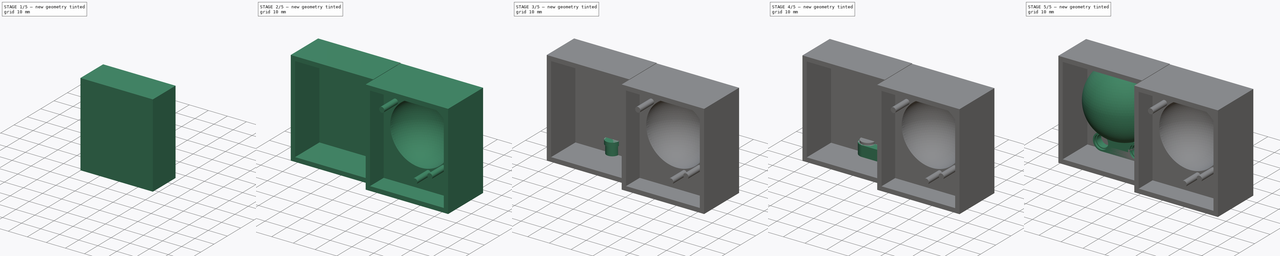
[diagram: build sequence overview — one tinted view per stage of 5, left to right]
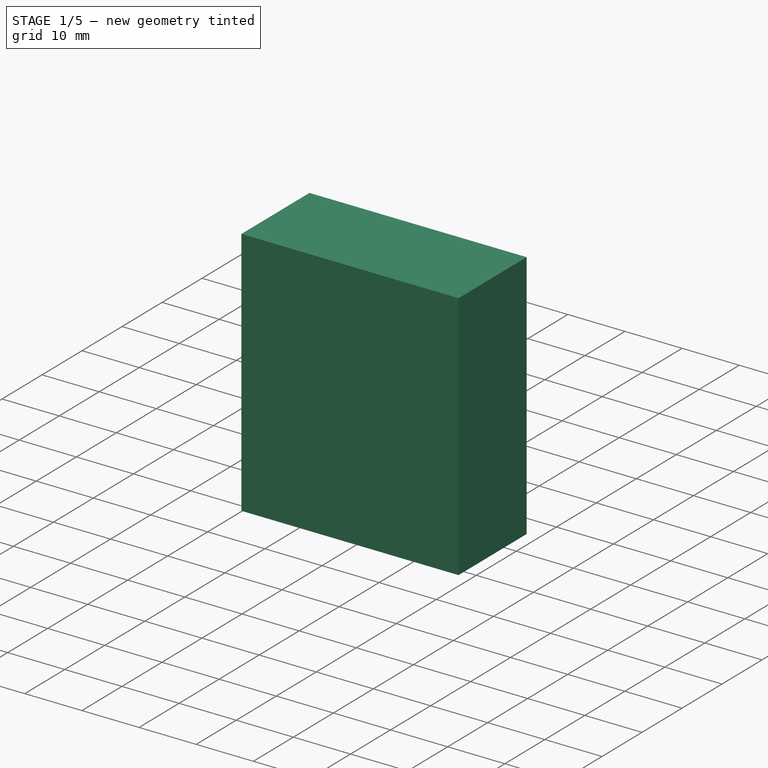
[diagram: stage 1 of 5 — iso view after this stage's code; geometry added in this stage tinted green]
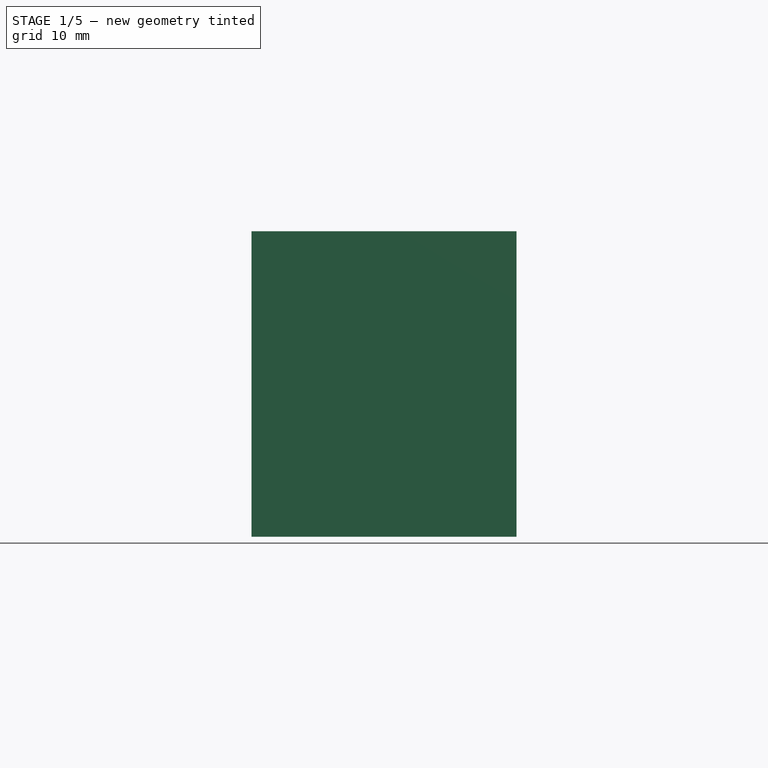
[diagram: stage 1 of 5 — front view after this stage's code; geometry added in this stage tinted green]
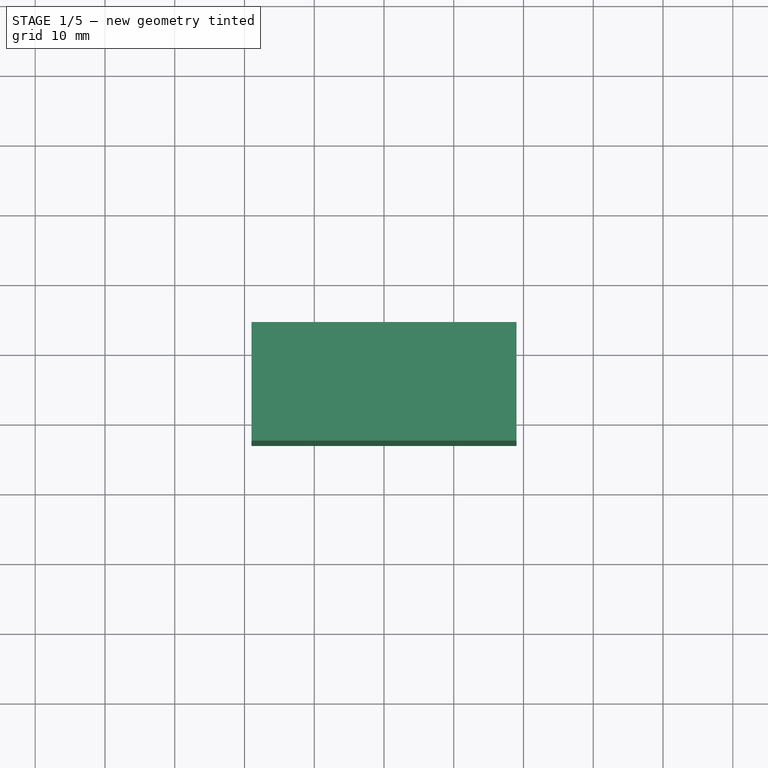
[diagram: stage 1 of 5 — top view after this stage's code; geometry added in this stage tinted green]
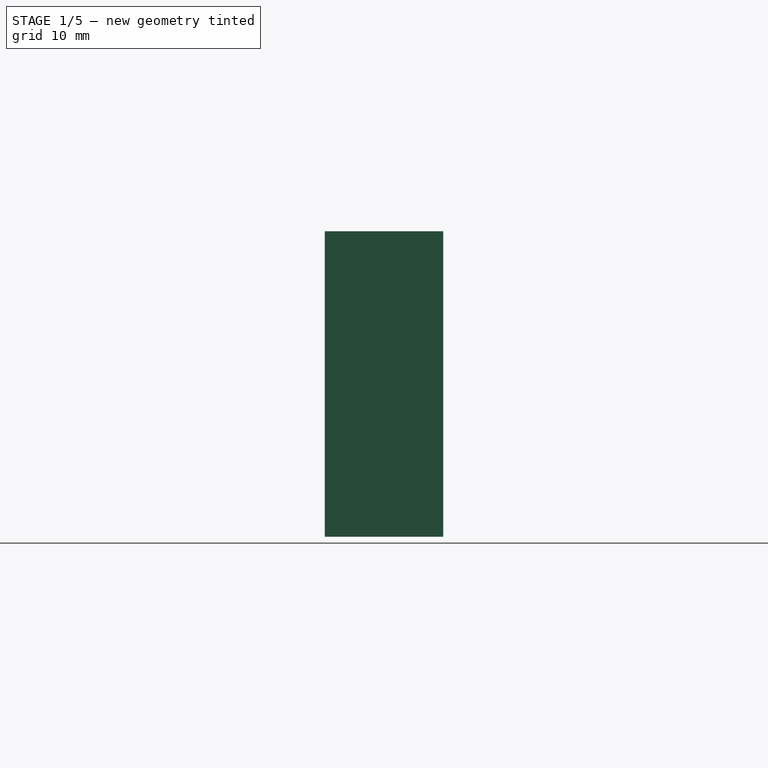
[diagram: stage 1 of 5 — right view after this stage's code; geometry added in this stage tinted green]
FCSTD DOCUMENT  (FreeCAD 0.16R6703 (Git))
Label: test_version2
License: All rights reserved
LicenseURL: http://en.wikipedia.org/wiki/All_rights_reserved
objects: Part::Prism×8, Part::MultiFuse×5, Sketcher::SketchObject×5, PartDesign::Pad×5, Part::Box×4, Part::Sphere×2, Part::Cut×2, Part::Fuse×2, Part::FeaturePython×1, Part::MultiCommon×1, Part::Common×1
note: 41 computed .brp shape members not serialized (recipe doc carries the construction recipe); baked Part::Feature solids carry a one-line shape summary decoded from their .brp

FEATURE [Part::Sphere] sphere001
  Angle1 = -90
  Angle2 = 90
  Angle3 = 360
  Placement = pos=(0,0,24.8) rot=(0,0,1;0rad)
  Radius = 14
FEATURE [Part::Box] cube001
  Height = 43.8
  Length = 38
  Placement = pos=(-19,0,0) rot=(0,0,1;0rad)
  Width = 19
FEATURE [Part::Common] intersection
  Base = -> sphere001
  Tool = -> cube001
FEATURE [Part::Box] cube002
  Height = 43.8
  Length = 38
  Placement = pos=(-19,-3,0) rot=(0,0,1;0rad)
  Width = 3
FEATURE [Part::Fuse] Group003
  Base = -> intersection
  Tool = -> cube002
FEATURE [Sketcher::SketchObject] Sketch002
  ExternalGeometry = -> [Group003]
  Placement = pos=(0,-3,0) rot=(1,0,0;1.5708rad)
  Support = -> Group003 [Face2]
  sketch-geometry (4):
    g0: LineSegment StartX=-19 StartY=43.8 StartZ=0 EndX=19 EndY=43.8 EndZ=0
    g1: LineSegment StartX=19 StartY=43.8 StartZ=0 EndX=19 EndY=0 EndZ=0
    g2: LineSegment StartX=19 StartY=0 StartZ=0 EndX=-19 EndY=0 EndZ=0
    g3: LineSegment StartX=-19 StartY=0 StartZ=0 EndX=-19 EndY=43.8 EndZ=0
  constraints (10):
    c: Coincident(g0,g1)
    c: Coincident(g1,g2)
    c: Coincident(g2,g3)
    c: Coincident(g3,g0)
    c: Horizontal(g0)
    c: Horizontal(g2)
    c: Vertical(g1)
    c: Vertical(g3)
    c: Coincident(g0,g-3)
    c: Coincident(g-4,g1)
FEATURE [PartDesign::Pad] Pad002
  Length = 17
  Length2 = 100
  Reversed = true
  Sketch = -> Sketch002
  Type = 0
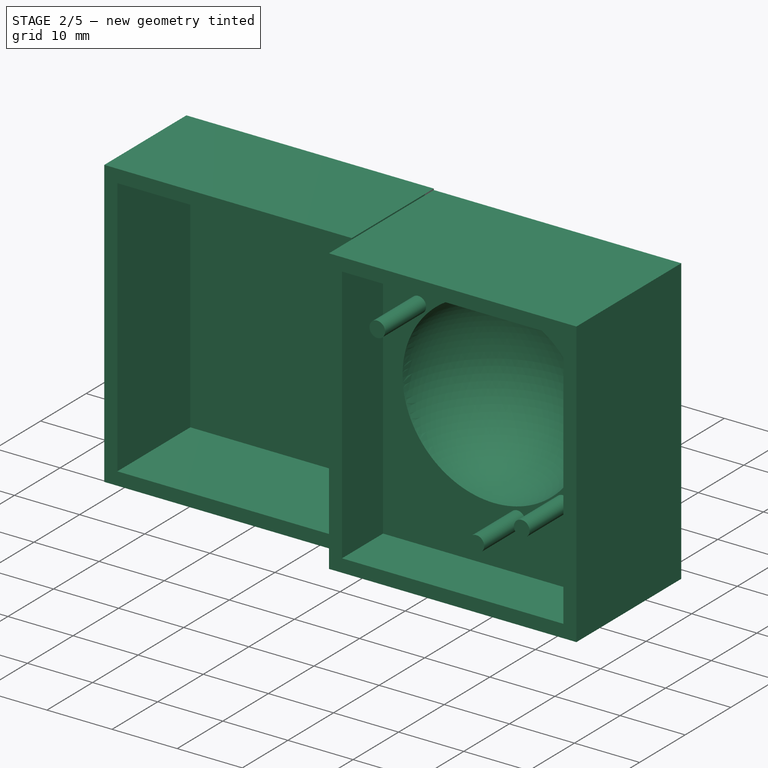
[diagram: stage 2 of 5 — iso view after this stage's code; geometry added in this stage tinted green]
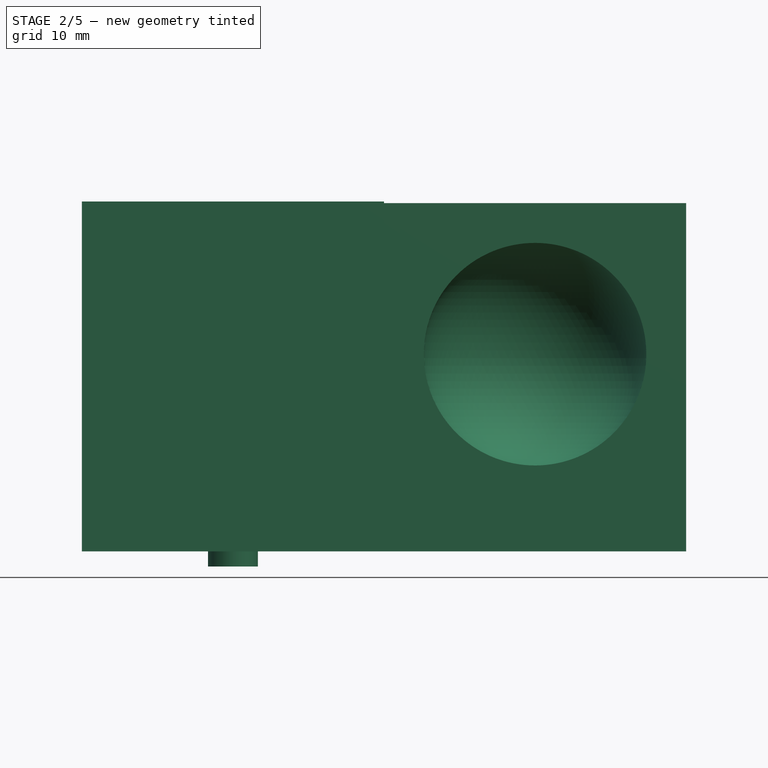
[diagram: stage 2 of 5 — front view after this stage's code; geometry added in this stage tinted green]
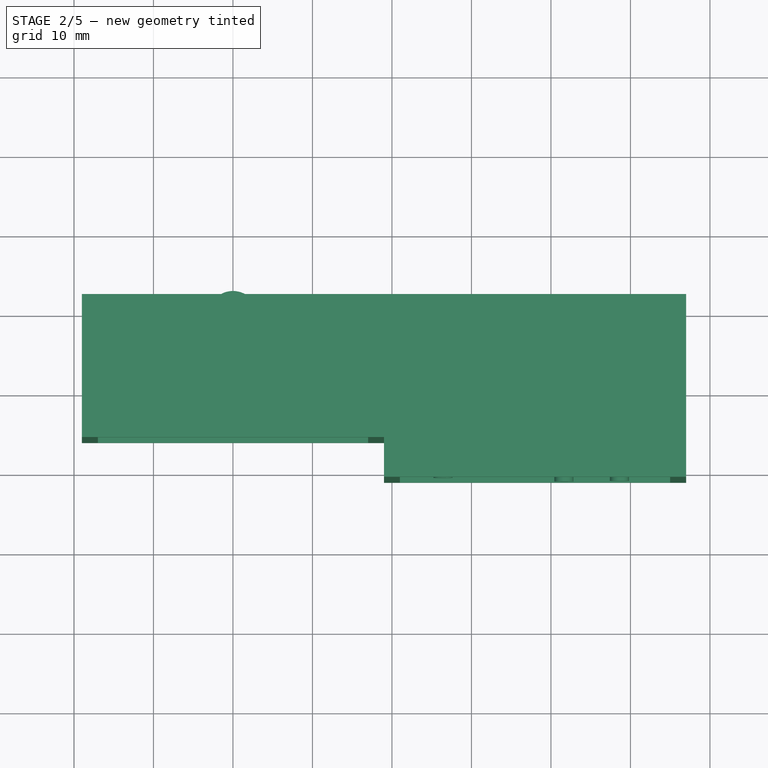
[diagram: stage 2 of 5 — top view after this stage's code; geometry added in this stage tinted green]
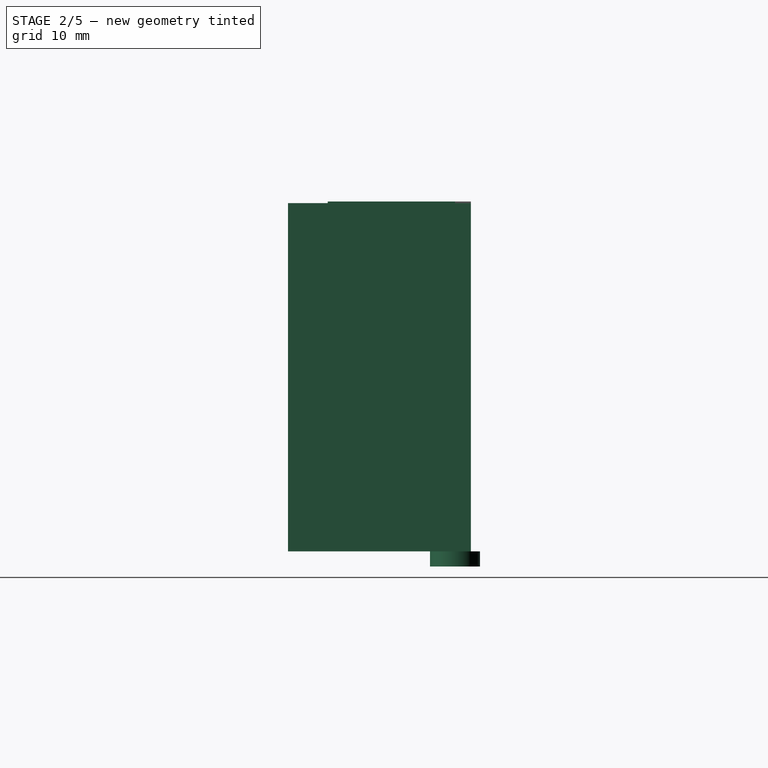
[diagram: stage 2 of 5 — right view after this stage's code; geometry added in this stage tinted green]
FEATURE [Part::Prism] prism007
  Circumradius = 3.14
  Height = 1.9
  Placement = pos=(0,0,-4.9) rot=(0,0,1;0rad)
  Polygon = 100
FEATURE [Part::Box] Box  label="Cube"
  Height = 44
  Length = 38
  Placement = pos=(-19,0,-3) rot=(0,0,1;0rad)
  Width = 2
FEATURE [Sketcher::SketchObject] Sketch
  ExternalGeometry = -> [Box]
  Placement = pos=(-19,0,-3) rot=(1,0,0;1.5708rad)
  Support = -> Box [Face3]
  sketch-geometry (10):
    g0: LineSegment StartX=2 StartY=42 StartZ=0 EndX=36 EndY=42 EndZ=0
    g1: LineSegment StartX=36 StartY=42 StartZ=0 EndX=36 EndY=2 EndZ=0
    g2: LineSegment StartX=36 StartY=2 StartZ=0 EndX=2 EndY=2 EndZ=0
    g3: LineSegment StartX=2 StartY=2 StartZ=0 EndX=2 EndY=42 EndZ=0
    g4: LineSegment StartX=0 StartY=44 StartZ=0 EndX=38 EndY=44 EndZ=0
    g5: LineSegment StartX=38 StartY=44 StartZ=0 EndX=38 EndY=0 EndZ=0
    g6: LineSegment StartX=38 StartY=0 StartZ=0 EndX=0 EndY=0 EndZ=0
    g7: LineSegment StartX=0 StartY=0 StartZ=0 EndX=0 EndY=44 EndZ=0
    g8: LineSegment [constr] StartX=2 StartY=42 StartZ=0 EndX=0 EndY=44 EndZ=0
    g9: LineSegment [constr] StartX=38 StartY=0 StartZ=0 EndX=36 EndY=2 EndZ=0
  constraints (26):
    c: Coincident(g0,g1)
    c: Coincident(g1,g2)
    c: Coincident(g2,g3)
    c: Coincident(g3,g0)
    c: Horizontal(g0)
    c: Horizontal(g2)
    c: Vertical(g1)
    c: Vertical(g3)
    c: Coincident(g4,g5)
    c: Coincident(g5,g6)
    c: Coincident(g6,g7)
    c: Coincident(g7,g4)
    c: Horizontal(g4)
    c: Horizontal(g6)
    c: Vertical(g5)
    c: Vertical(g7)
    c: Coincident(g8,g0)
    c: Coincident(g8,g4)
    c: Coincident(g9,g5)
    c: Coincident(g9,g1)
    c: Equal(g8,g9)
    c: Angle(g8) = 2.35619
    c: DistanceY(g0,g4) = 2
    c: Angle(g9) = 2.35619
    c: Coincident(g-3,g4)
    c: Coincident(g-4,g5)
FEATURE [PartDesign::Pad] Pad
  Length = 16
  Length2 = 100
  Placement = pos=(-19,0,-3) rot=(0,0,1;0rad)
  Sketch = -> Sketch
  Type = 0
FEATURE [Part::Cut] Cut
  Base = -> Pad002
  Placement = pos=(38,-12,-3) rot=(0,0,1;0rad)
  Tool = -> Group003
FEATURE [Sketcher::SketchObject] Sketch003
  ExternalGeometry = -> [Cut]
  Placement = pos=(38,-12,-3) rot=(1,0,0;1.5708rad)
  Support = -> Cut [Face6]
  sketch-geometry (3):
    g0: Circle CenterX=-11.5773 CenterY=35.2351 CenterZ=0 NormalX=0 NormalY=0 NormalZ=1 Radius=1.2
    g1: Circle CenterX=10.613 CenterY=13.5126 CenterZ=0 NormalX=0 NormalY=0 NormalZ=1 Radius=1.2
    g2: Circle CenterX=3.6386 CenterY=9.536 CenterZ=0 NormalX=0 NormalY=0 NormalZ=1 Radius=1.2
  constraints (9):
    c: Equal(g0,g2)
    c: Equal(g2,g1)
    c: Radius(g0) = 1.2
    c: DistanceX(g0) = -11.5773
    c: DistanceY(g0) = 35.2351
    c: DistanceX(g2) = 3.6386
    c: DistanceY(g2) = 9.536
    c: DistanceX(g1) = 10.613
    c: DistanceY(g1) = 13.5126
FEATURE [PartDesign::Pad] Pad003
  Length = 9
  Length2 = 100
  Placement = pos=(38,-12,-3) rot=(0,0,1;0rad)
  Sketch = -> Sketch003
  Type = 0
FEATURE [Sketcher::SketchObject] Sketch004
  ExternalGeometry = -> [Pad003]
  Placement = pos=(38,-12,-3) rot=(1,0,0;1.5708rad)
  Support = -> Pad003 [Face6]
  sketch-geometry (10):
    g0: LineSegment StartX=-19 StartY=43.8 StartZ=0 EndX=19 EndY=43.8 EndZ=0
    g1: LineSegment StartX=19 StartY=43.8 StartZ=0 EndX=19 EndY=0 EndZ=0
    g2: LineSegment StartX=19 StartY=0 StartZ=0 EndX=-19 EndY=0 EndZ=0
    g3: LineSegment StartX=-19 StartY=0 StartZ=0 EndX=-19 EndY=43.8 EndZ=0
    g4: LineSegment StartX=-17 StartY=41.8 StartZ=0 EndX=17 EndY=41.8 EndZ=0
    g5: LineSegment StartX=17 StartY=41.8 StartZ=0 EndX=17 EndY=2 EndZ=0
    g6: LineSegment StartX=17 StartY=2 StartZ=0 EndX=-17 EndY=2 EndZ=0
    g7: LineSegment StartX=-17 StartY=2 StartZ=0 EndX=-17 EndY=41.8 EndZ=0
    g8: LineSegment [constr] StartX=-19 StartY=43.8 StartZ=0 EndX=-17 EndY=41.8 EndZ=0
    g9: LineSegment [constr] StartX=17 StartY=2 StartZ=0 EndX=19 EndY=0 EndZ=0
  constraints (26):
    c: Coincident(g0,g1)
    c: Coincident(g1,g2)
    c: Coincident(g2,g3)
    c: Coincident(g3,g0)
    c: Horizontal(g0)
    c: Horizontal(g2)
    c: Vertical(g1)
    c: Vertical(g3)
    c: Coincident(g4,g5)
    c: Coincident(g5,g6)
    c: Coincident(g6,g7)
    c: Coincident(g7,g4)
    c: Horizontal(g4)
    c: Horizontal(g6)
    c: Vertical(g5)
    c: Vertical(g7)
    c: Coincident(g8,g0)
    c: Coincident(g8,g4)
    c: Coincident(g9,g5)
    c: Coincident(g9,g1)
    c: Angle(g8) = -0.785398
    c: Angle(g9) = -0.785398
    c: Equal(g9,g8)
    c: DistanceY(g4,g0) = 2
    c: Coincident(g0,g-3)
    c: Coincident(g2,g-4)
FEATURE [PartDesign::Pad] Pad004
  Length = 9
  Length2 = 100
  Placement = pos=(38,-12,-3) rot=(0,0,1;0rad)
  Sketch = -> Sketch004
  Type = 0
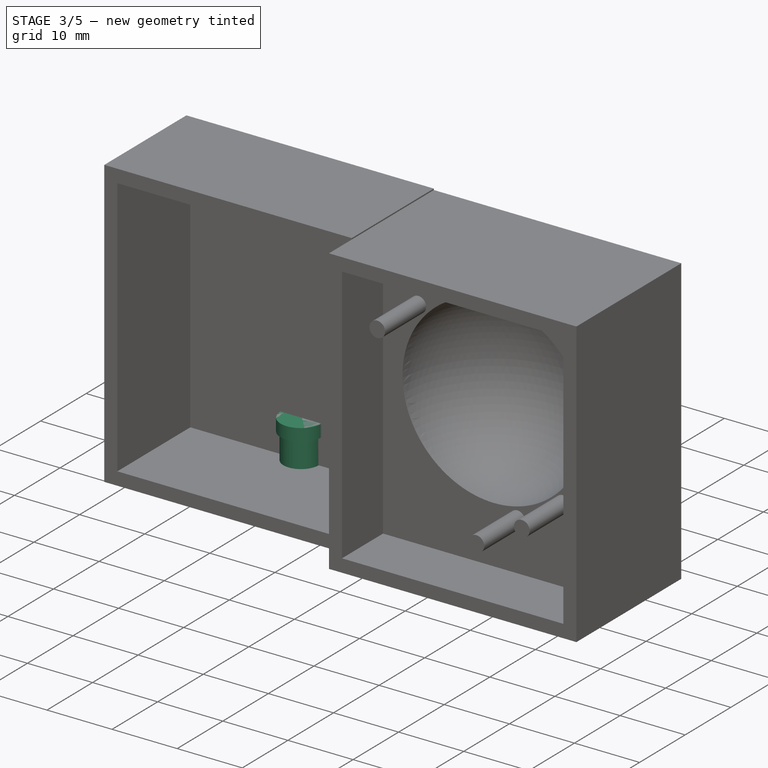
[diagram: stage 3 of 5 — iso view after this stage's code; geometry added in this stage tinted green]
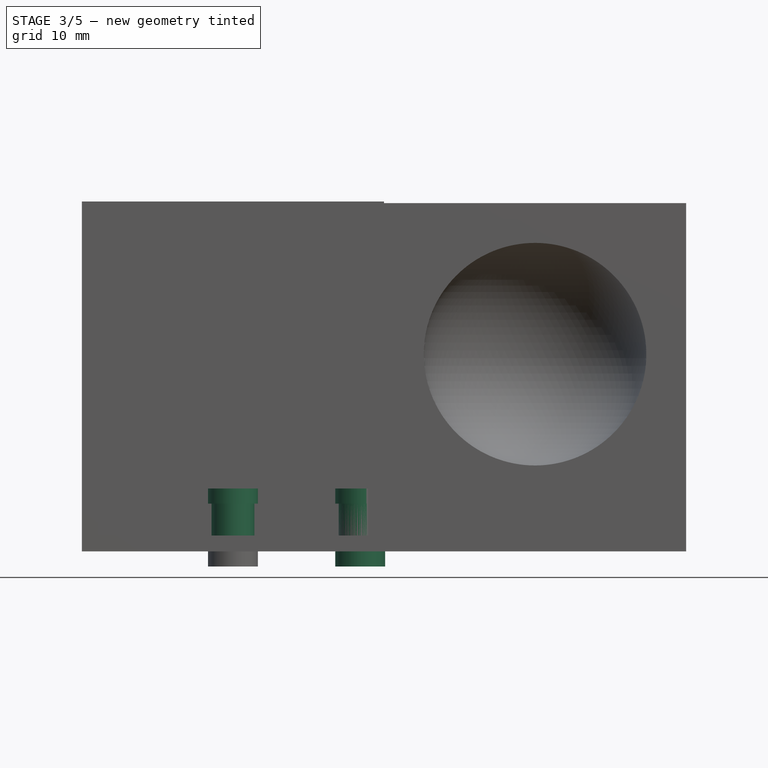
[diagram: stage 3 of 5 — front view after this stage's code; geometry added in this stage tinted green]
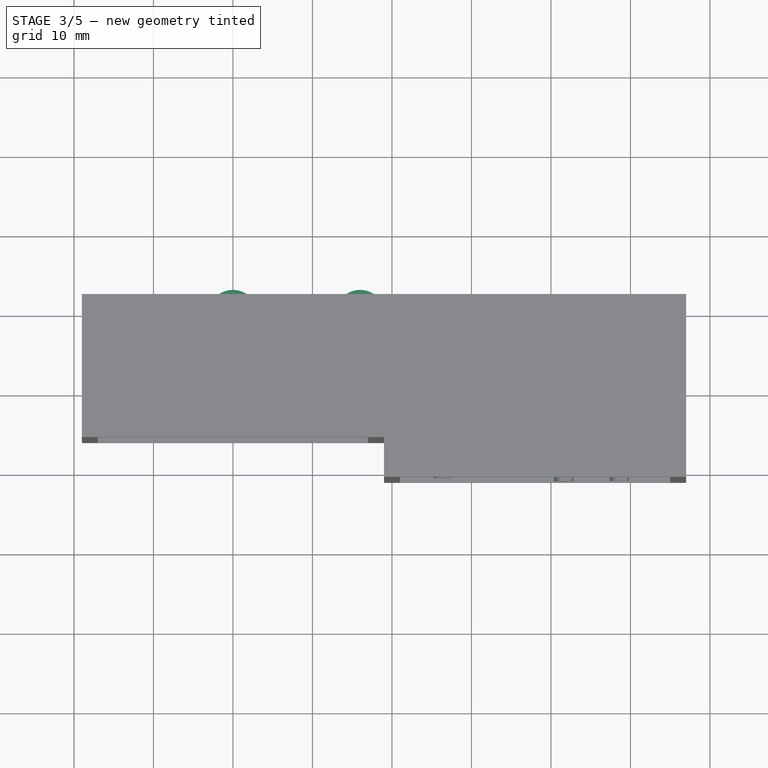
[diagram: stage 3 of 5 — top view after this stage's code; geometry added in this stage tinted green]
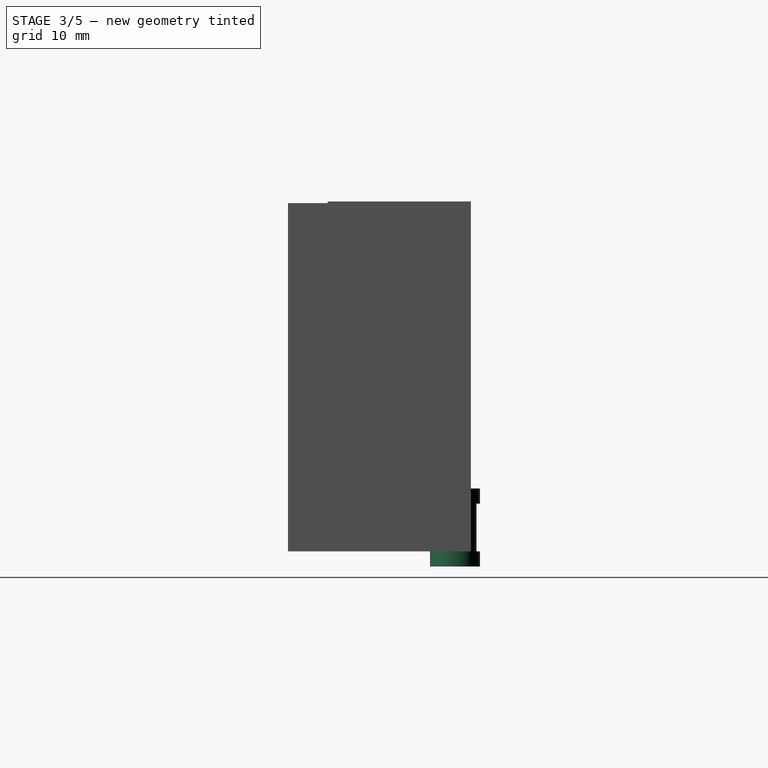
[diagram: stage 3 of 5 — right view after this stage's code; geometry added in this stage tinted green]
FEATURE [Part::Prism] prism002
  Circumradius = 2.7
  Height = 9.8
  Placement = pos=(0,0,-4.9) rot=(0,0,1;0rad)
  Polygon = 100
FEATURE [Part::Prism] prism003
  Circumradius = 3.14
  Height = 1.9
  Placement = pos=(0,0,3) rot=(0,0,1;0rad)
  Polygon = 100
FEATURE [Part::Prism] prism004
  Circumradius = 3.14
  Height = 1.9
  Placement = pos=(0,0,-4.9) rot=(0,0,1;0rad)
  Polygon = 100
FEATURE [Part::FeaturePython] group  # WARN: FeaturePython — macro-defined, semantics opaque (R4)
  Arguments = {}
  Placement = pos=(8,0,0) rot=(0,0,1;0rad)
FEATURE [Part::Prism] prism005
  Circumradius = 2.7
  Height = 9.8
  Placement = pos=(0,0,-4.9) rot=(0,0,1;0rad)
  Polygon = 100
FEATURE [Part::Prism] prism006
  Circumradius = 3.14
  Height = 1.9
  Placement = pos=(0,0,3) rot=(0,0,1;0rad)
  Polygon = 100
FEATURE [Part::MultiFuse] Group001
  Placement = pos=(16,0,0) rot=(0,0,1;0rad)
  Shapes = -> [prism005,prism006,prism007]
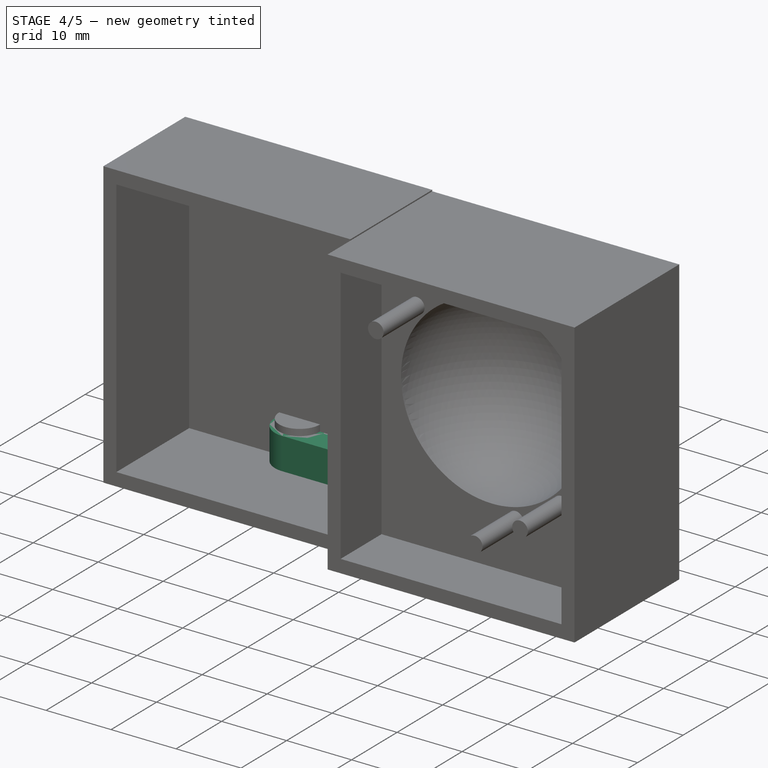
[diagram: stage 4 of 5 — iso view after this stage's code; geometry added in this stage tinted green]
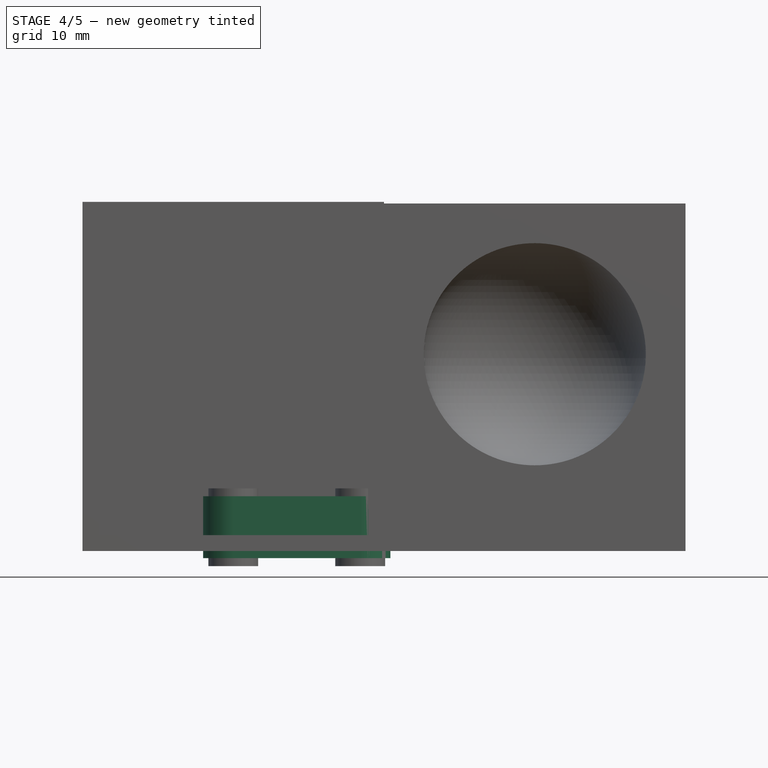
[diagram: stage 4 of 5 — front view after this stage's code; geometry added in this stage tinted green]
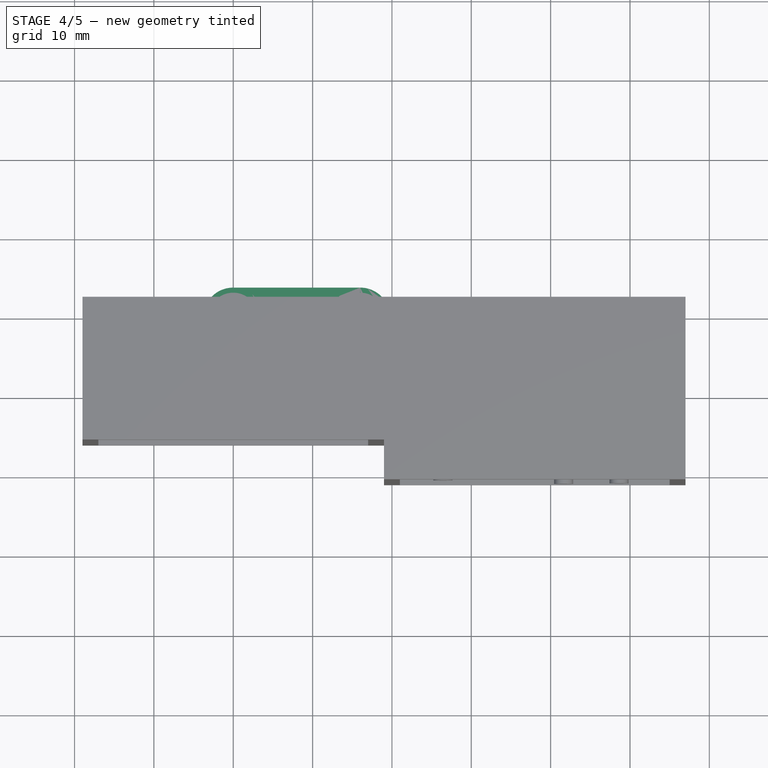
[diagram: stage 4 of 5 — top view after this stage's code; geometry added in this stage tinted green]
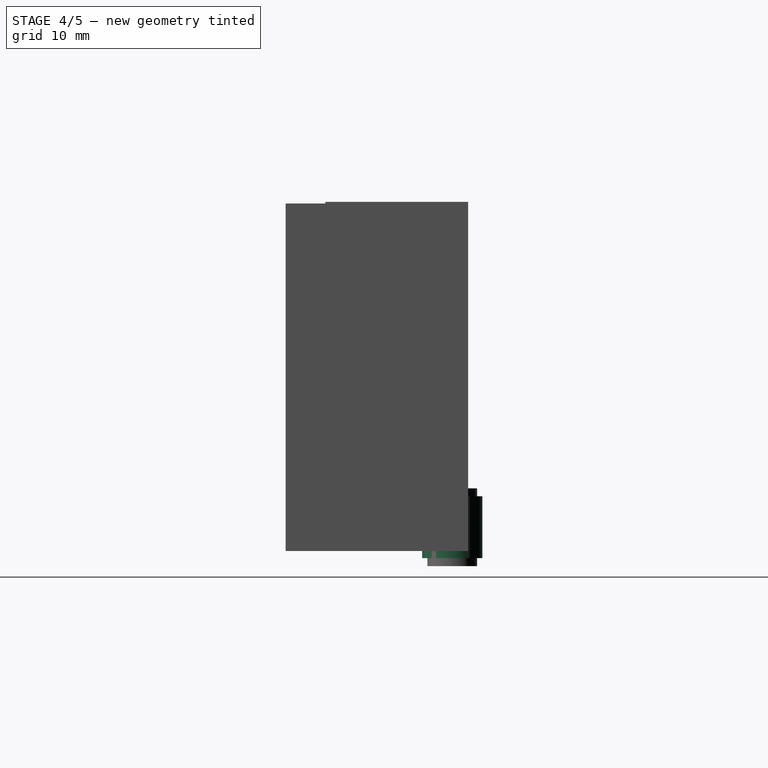
[diagram: stage 4 of 5 — right view after this stage's code; geometry added in this stage tinted green]
FEATURE [Part::Box] cube
  Height = 7.8
  Length = 16
  Placement = pos=(-8,-3.8,-3.9) rot=(0,0,1;0rad)
  Width = 7.6
FEATURE [Part::Prism] prism
  Circumradius = 3.8
  Height = 7.8
  Placement = pos=(-8,0,-3.9) rot=(0,0,1;0rad)
  Polygon = 100
FEATURE [Part::Prism] prism001
  Circumradius = 3.8
  Height = 7.8
  Placement = pos=(8,0,-3.9) rot=(0,0,1;0rad)
  Polygon = 100
FEATURE [Part::MultiFuse] Matrix_Union
  Placement = pos=(8,0,0) rot=(0,0,1;0rad)
  Shapes = -> [cube,prism,prism001]
FEATURE [Part::MultiFuse] Group
  Shapes = -> [prism002,prism003,prism004]
FEATURE [Part::MultiFuse] Group002
  Shapes = -> [Group,group,Group001]
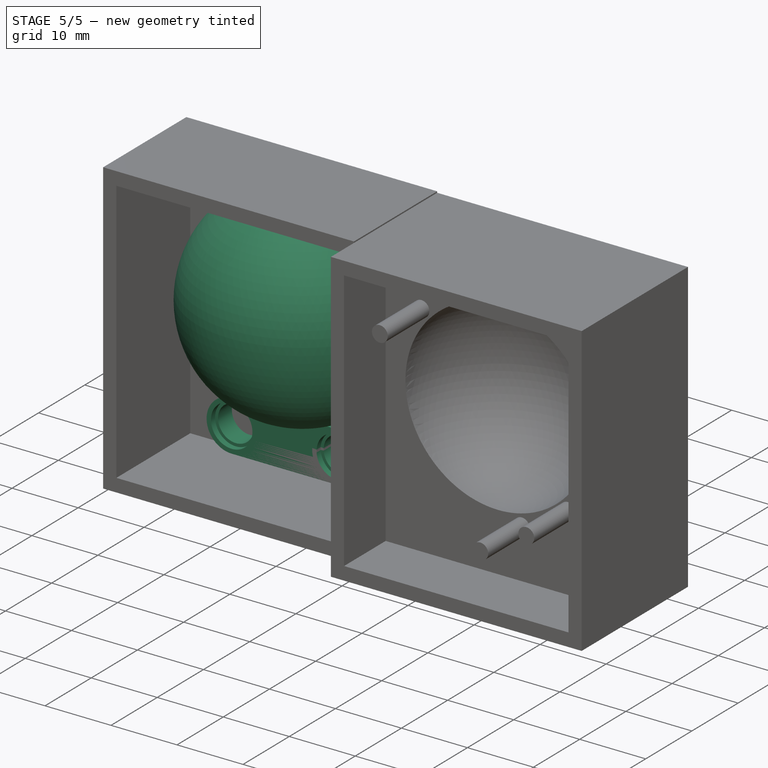
[diagram: stage 5 of 5 — iso view after this stage's code; geometry added in this stage tinted green]
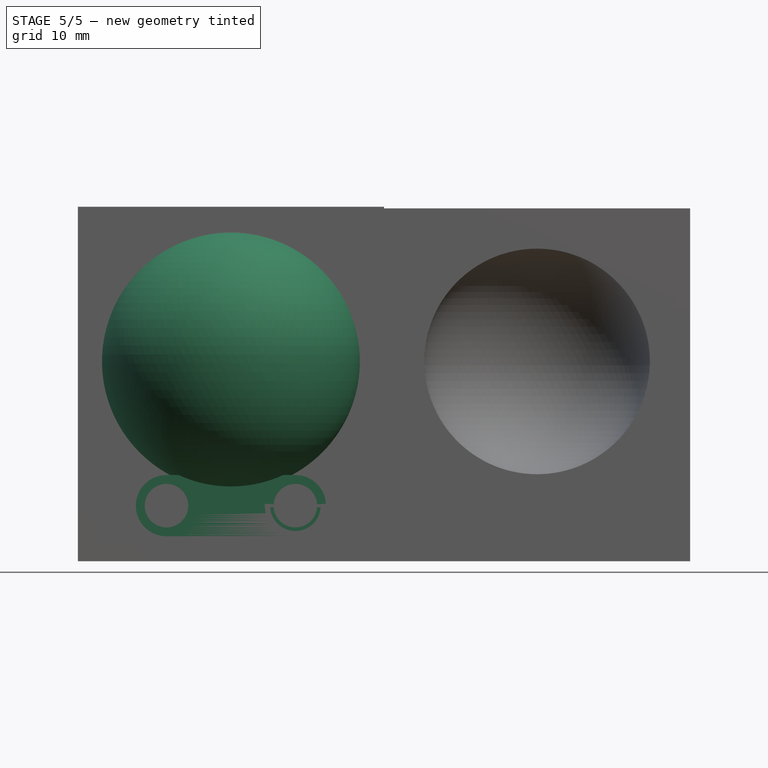
[diagram: stage 5 of 5 — front view after this stage's code; geometry added in this stage tinted green]
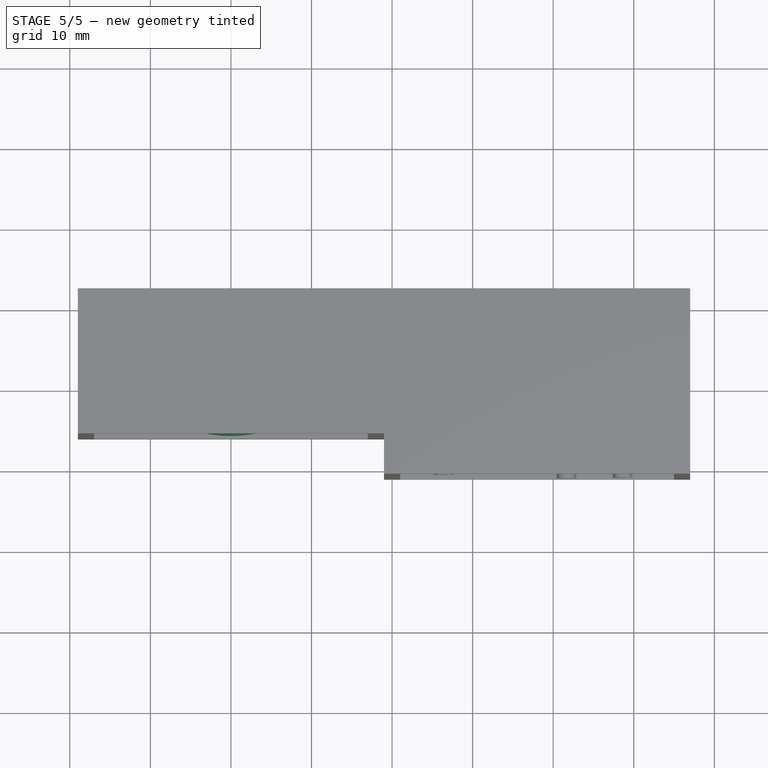
[diagram: stage 5 of 5 — top view after this stage's code; geometry added in this stage tinted green]
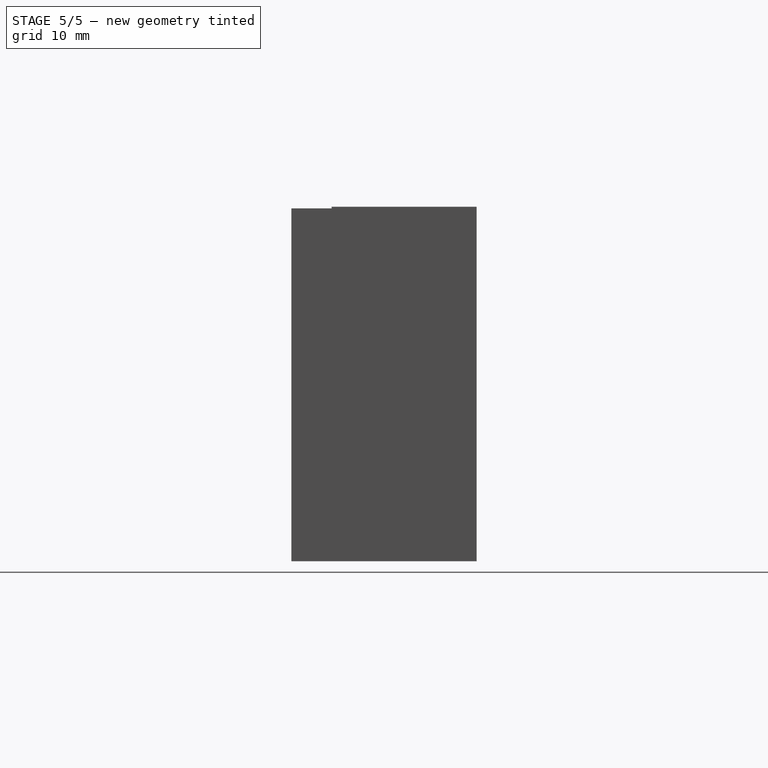
[diagram: stage 5 of 5 — right view after this stage's code; geometry added in this stage tinted green]
FEATURE [Part::Sphere] sphere
  Angle1 = -90
  Angle2 = 90
  Angle3 = 360
  Placement = pos=(0,0,17.9) rot=(0,0,1;0rad)
  Radius = 16
FEATURE [Part::Cut] difference
  Base = -> Matrix_Union
  Placement = pos=(-8,0,0) rot=(1,0,0;1.5708rad)
  Tool = -> Group002
FEATURE [Part::Fuse] union
  Base = -> sphere
  Placement = pos=(0,0,3.9) rot=(0,0,1;0rad)
  Tool = -> difference
FEATURE [Sketcher::SketchObject] Sketch001
  ExternalGeometry = -> [Pad]
  Placement = pos=(-19,2,-3) rot=(0,0.707107,0.707107;3.14159rad)
  Support = -> Pad [Face1]
  sketch-geometry (4):
    g0: LineSegment StartX=-38 StartY=44 StartZ=0 EndX=0 EndY=44 EndZ=0
    g1: LineSegment StartX=0 StartY=44 StartZ=0 EndX=0 EndY=0 EndZ=0
    g2: LineSegment StartX=0 StartY=0 StartZ=0 EndX=-38 EndY=0 EndZ=0
    g3: LineSegment StartX=-38 StartY=0 StartZ=0 EndX=-38 EndY=44 EndZ=0
  constraints (10):
    c: Coincident(g0,g1)
    c: Coincident(g1,g2)
    c: Coincident(g2,g3)
    c: Coincident(g3,g0)
    c: Horizontal(g0)
    c: Horizontal(g2)
    c: Vertical(g1)
    c: Vertical(g3)
    c: Coincident(g-3,g0)
    c: Coincident(g-1,g1)
FEATURE [PartDesign::Pad] Pad001
  Length = 20
  Length2 = 100
  Placement = pos=(-19,0,-3) rot=(0,0,1;0rad)
  Reversed = true
  Sketch = -> Sketch001
  Type = 0
FEATURE [Part::MultiFuse] Fusion
  Shapes = -> [Pad,Box,union]
FEATURE [Part::MultiCommon] Common
  Shapes = -> [Pad001,Fusion]
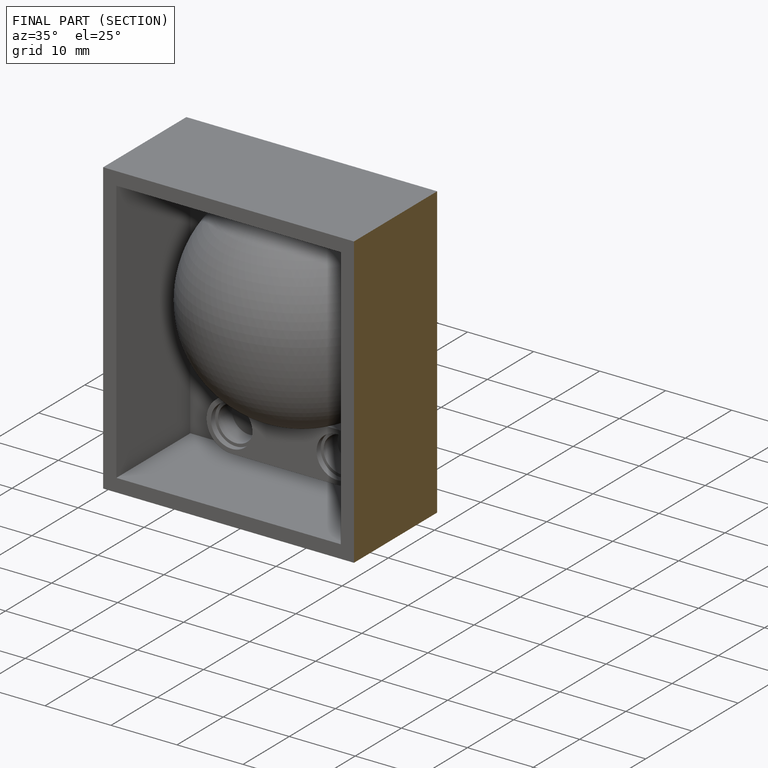
[diagram: finished part — half-section view (interior)]
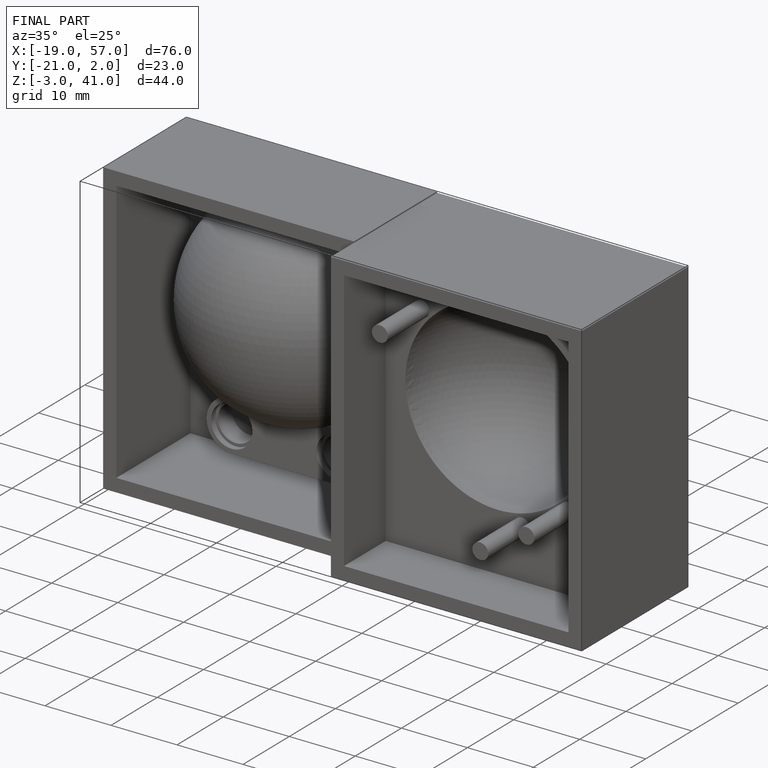
[diagram: finished part — iso view with bounding-box wireframe]
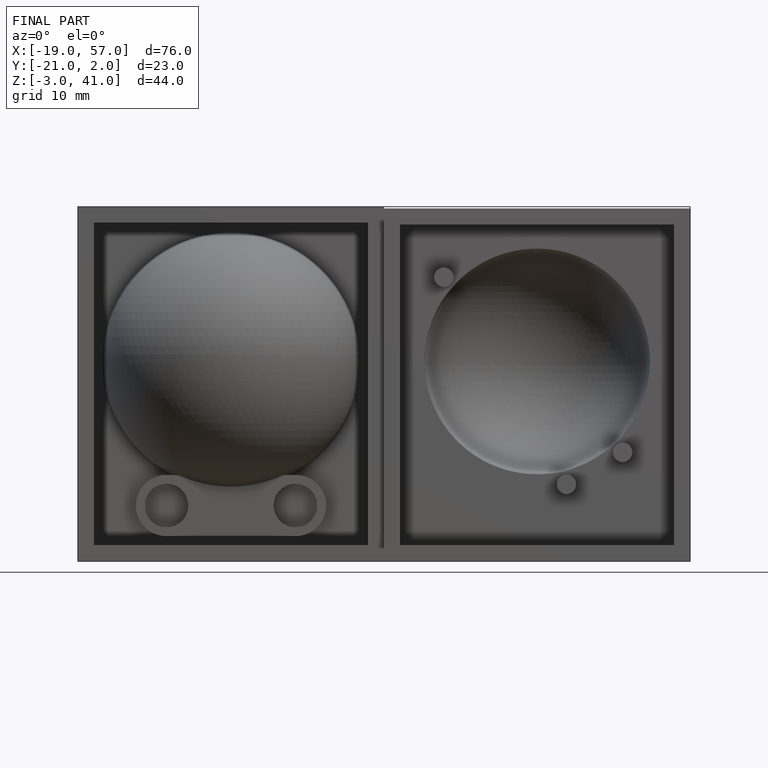
[diagram: finished part — front view with bounding-box wireframe]
